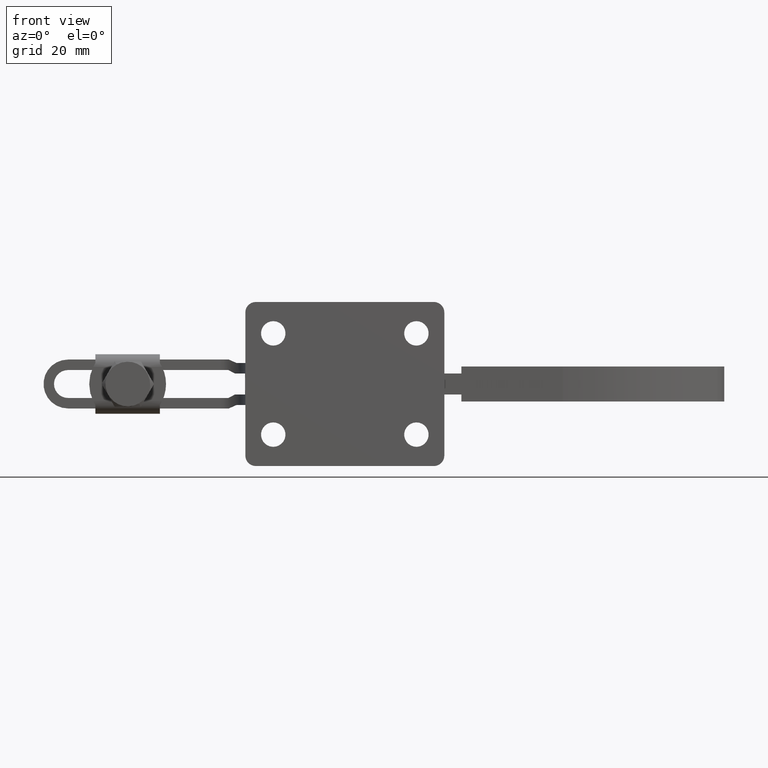
[diagram: clean part render]
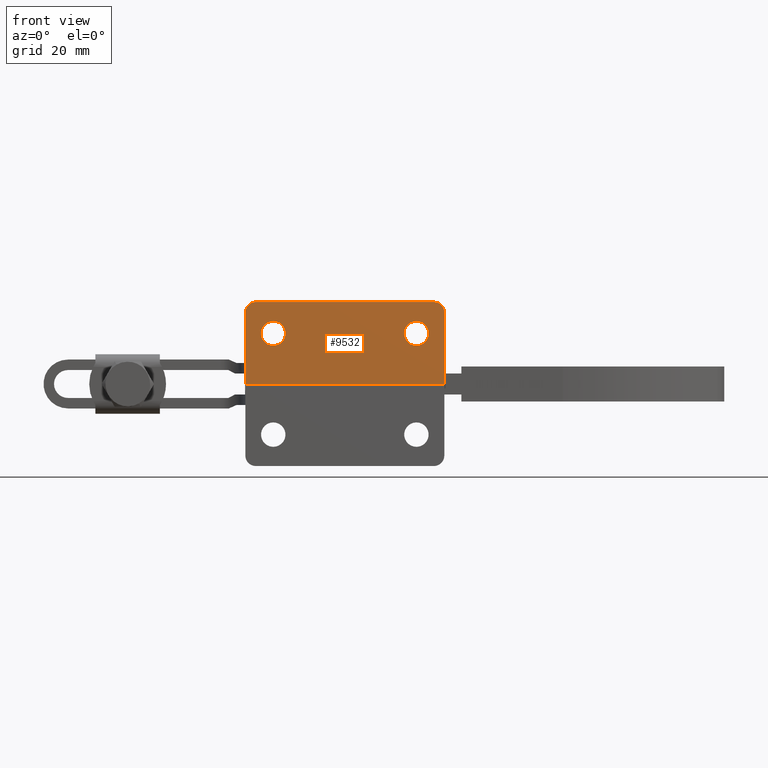
[diagram: same view with one face highlighted and labeled with its STEP entity id]
A machine part, front view. The second image highlights one B-rep face of the part: STEP entity #9532.
In plain terms, the highlighted planar face has unit normal (0, 1, 0).
Its self-contained STEP definition (entity closure, byte-faithful):
#43 = ORIENTED_EDGE ( 'NONE', *, *, #2394, .T. ) ;
#61 = CIRCLE ( 'NONE', #7552, 3.499999999999999600 ) ;
#221 = DIRECTION ( 'NONE',  ( 0.0000000000000000000, -1.000000000000000000, 0.0000000000000000000 ) ) ;
#383 = VERTEX_POINT ( 'NONE', #9295 ) ;
#393 = FACE_BOUND ( 'NONE', #9025, .T. ) ;
#451 = DIRECTION ( 'NONE',  ( 0.0000000000000000000, -1.000000000000000000, 0.0000000000000000000 ) ) ;
#472 = VERTEX_POINT ( 'NONE', #1089 ) ;
#546 = EDGE_CURVE ( 'NONE', #1109, #383, #7404, .T. ) ;
#640 = CARTESIAN_POINT ( 'NONE',  ( -53.99999999999999300, 0.0000000000000000000, 23.49999999999953500 ) ) ;
#754 = CARTESIAN_POINT ( 'NONE',  ( -53.99999999999996400, 0.0000000000000000000, 20.49999999999950600 ) ) ;
#787 = EDGE_CURVE ( 'NONE', #472, #5804, #6975, .T. ) ;
#910 = AXIS2_PLACEMENT_3D ( 'NONE', #1736, #6878, #8691 ) ;
#954 = ORIENTED_EDGE ( 'NONE', *, *, #787, .F. ) ;
#1089 = CARTESIAN_POINT ( 'NONE',  ( -49.00000000000002800, 0.0000000000000000000, 10.99999999999959000 ) ) ;
#1109 = VERTEX_POINT ( 'NONE', #2378 ) ;
#1136 = CARTESIAN_POINT ( 'NONE',  ( -56.99999999999994300, 0.0000000000000000000, 3.000000000000000000 ) ) ;
#1362 = AXIS2_PLACEMENT_3D ( 'NONE', #754, #5298, #2544 ) ;
#1447 = CIRCLE ( 'NONE', #1362, 2.999999999999964500 ) ;
#1685 = ORIENTED_EDGE ( 'NONE', *, *, #2163, .T. ) ;
#1736 = CARTESIAN_POINT ( 'NONE',  ( -3.000000000000037300, 0.0000000000000000000, 20.49999999999988600 ) ) ;
#1799 = VECTOR ( 'NONE', #6475, 1000.000000000000000 ) ;
#1867 = CARTESIAN_POINT ( 'NONE',  ( -49.00000000000002800, 0.0000000000000000000, 14.49999999999959000 ) ) ;
#1882 = DIRECTION ( 'NONE',  ( 0.0000000000000000000, 0.0000000000000000000, -1.000000000000000000 ) ) ;
#2095 = EDGE_CURVE ( 'NONE', #4907, #383, #8582, .T. ) ;
#2163 = EDGE_CURVE ( 'NONE', #4904, #4739, #3983, .T. ) ;
#2217 = EDGE_LOOP ( 'NONE', ( #6435, #4391, #4735, #1685, #43, #6569 ) ) ;
#2284 = CARTESIAN_POINT ( 'NONE',  ( -56.99999999999994300, -1.522237674642272100E-100, -1.333041399158481200E-049 ) ) ;
#2378 = CARTESIAN_POINT ( 'NONE',  ( -1.457167719820518000E-013, 0.0000000000000000000, 20.49999999999990800 ) ) ;
#2394 = EDGE_CURVE ( 'NONE', #4739, #6618, #1447, .T. ) ;
#2416 = VERTEX_POINT ( 'NONE', #7059 ) ;
#2526 = PLANE ( 'NONE',  #4174 ) ;
#2544 = DIRECTION ( 'NONE',  ( 0.0000000000000000000, 0.0000000000000000000, -1.000000000000000000 ) ) ;
#2563 = EDGE_LOOP ( 'NONE', ( #954, #5413 ) ) ;
#2626 = CIRCLE ( 'NONE', #3782, 3.499999999999999600 ) ;
#2941 = VECTOR ( 'NONE', #8666, 1000.000000000000000 ) ;
#2987 = CARTESIAN_POINT ( 'NONE',  ( -49.00000000000002800, 0.0000000000000000000, 17.99999999999958800 ) ) ;
#3100 = DIRECTION ( 'NONE',  ( 0.0000000000000000000, -0.0000000000000000000, 1.000000000000000000 ) ) ;
#3186 = VERTEX_POINT ( 'NONE', #8695 ) ;
#3353 = CIRCLE ( 'NONE', #910, 2.999999999999947200 ) ;
#3483 = CARTESIAN_POINT ( 'NONE',  ( -53.99999999999999300, 0.0000000000000000000, 23.49999999999953500 ) ) ;
#3509 = CARTESIAN_POINT ( 'NONE',  ( -56.99999999999992900, 0.0000000000000000000, 20.49999999999951300 ) ) ;
#3655 = ORIENTED_EDGE ( 'NONE', *, *, #6001, .F. ) ;
#3696 = AXIS2_PLACEMENT_3D ( 'NONE', #3836, #9038, #1882 ) ;
#3782 = AXIS2_PLACEMENT_3D ( 'NONE', #6320, #221, #4893 ) ;
#3836 = CARTESIAN_POINT ( 'NONE',  ( -8.000000000000111900, 0.0000000000000000000, 14.49999999999988100 ) ) ;
#3909 = VECTOR ( 'NONE', #7611, 1000.000000000000000 ) ;
#3983 = LINE ( 'NONE', #3483, #1799 ) ;
#4174 = AXIS2_PLACEMENT_3D ( 'NONE', #1136, #4944, #3100 ) ;
#4206 = CARTESIAN_POINT ( 'NONE',  ( -56.99999999999994300, -1.522237674642272100E-100, -1.333041399158481200E-049 ) ) ;
#4391 = ORIENTED_EDGE ( 'NONE', *, *, #546, .F. ) ;
#4437 = CARTESIAN_POINT ( 'NONE',  ( -49.00000000000002800, 0.0000000000000000000, 14.49999999999959000 ) ) ;
#4567 = EDGE_CURVE ( 'NONE', #1109, #4904, #3353, .T. ) ;
#4735 = ORIENTED_EDGE ( 'NONE', *, *, #4567, .T. ) ;
#4739 = VERTEX_POINT ( 'NONE', #640 ) ;
#4825 = DIRECTION ( 'NONE',  ( -0.0000000000000000000, -0.0000000000000000000, -1.000000000000000000 ) ) ;
#4893 = DIRECTION ( 'NONE',  ( 0.0000000000000000000, 0.0000000000000000000, -1.000000000000000000 ) ) ;
#4904 = VERTEX_POINT ( 'NONE', #7957 ) ;
#4907 = VERTEX_POINT ( 'NONE', #2284 ) ;
#4944 = DIRECTION ( 'NONE',  ( 0.0000000000000000000, 1.000000000000000000, 0.0000000000000000000 ) ) ;
#5209 = LINE ( 'NONE', #6889, #5429 ) ;
#5298 = DIRECTION ( 'NONE',  ( 0.0000000000000000000, -1.000000000000000000, 0.0000000000000000000 ) ) ;
#5413 = ORIENTED_EDGE ( 'NONE', *, *, #8475, .F. ) ;
#5429 = VECTOR ( 'NONE', #4825, 1000.000000000000000 ) ;
#5536 = DIRECTION ( 'NONE',  ( 0.0000000000000000000, 0.0000000000000000000, -1.000000000000000000 ) ) ;
#5669 = DIRECTION ( 'NONE',  ( 0.0000000000000000000, 0.0000000000000000000, -1.000000000000000000 ) ) ;
#5804 = VERTEX_POINT ( 'NONE', #2987 ) ;
#6001 = EDGE_CURVE ( 'NONE', #2416, #3186, #2626, .T. ) ;
#6029 = CIRCLE ( 'NONE', #3696, 3.499999999999999600 ) ;
#6257 = FACE_BOUND ( 'NONE', #2563, .T. ) ;
#6282 = CARTESIAN_POINT ( 'NONE',  ( 0.0000000000000000000, 0.0000000000000000000, 3.000000000000000000 ) ) ;
#6320 = CARTESIAN_POINT ( 'NONE',  ( -8.000000000000111900, 0.0000000000000000000, 14.49999999999988100 ) ) ;
#6435 = ORIENTED_EDGE ( 'NONE', *, *, #2095, .T. ) ;
#6475 = DIRECTION ( 'NONE',  ( -1.000000000000000000, -0.0000000000000000000, -6.938893903907237800E-015 ) ) ;
#6550 = DIRECTION ( 'NONE',  ( 0.0000000000000000000, -1.000000000000000000, 0.0000000000000000000 ) ) ;
#6569 = ORIENTED_EDGE ( 'NONE', *, *, #8003, .T. ) ;
#6583 = ORIENTED_EDGE ( 'NONE', *, *, #9541, .F. ) ;
#6618 = VERTEX_POINT ( 'NONE', #3509 ) ;
#6878 = DIRECTION ( 'NONE',  ( 0.0000000000000000000, -1.000000000000000000, 0.0000000000000000000 ) ) ;
#6889 = CARTESIAN_POINT ( 'NONE',  ( -56.99999999999994300, 0.0000000000000000000, 3.000000000000000000 ) ) ;
#6975 = CIRCLE ( 'NONE', #7411, 3.499999999999999600 ) ;
#7059 = CARTESIAN_POINT ( 'NONE',  ( -8.000000000000111900, 0.0000000000000000000, 17.99999999999987900 ) ) ;
#7404 = LINE ( 'NONE', #6282, #3909 ) ;
#7411 = AXIS2_PLACEMENT_3D ( 'NONE', #1867, #6550, #5669 ) ;
#7552 = AXIS2_PLACEMENT_3D ( 'NONE', #4437, #451, #5536 ) ;
#7611 = DIRECTION ( 'NONE',  ( -0.0000000000000000000, -0.0000000000000000000, -1.000000000000000000 ) ) ;
#7957 = CARTESIAN_POINT ( 'NONE',  ( -3.000000000000056800, 0.0000000000000000000, 23.49999999999983300 ) ) ;
#8003 = EDGE_CURVE ( 'NONE', #6618, #4907, #5209, .T. ) ;
#8208 = FACE_OUTER_BOUND ( 'NONE', #2217, .T. ) ;
#8475 = EDGE_CURVE ( 'NONE', #5804, #472, #61, .T. ) ;
#8582 = LINE ( 'NONE', #4206, #2941 ) ;
#8666 = DIRECTION ( 'NONE',  ( 1.000000000000000000, 2.670592411653112100E-102, 2.338669121330671200E-051 ) ) ;
#8691 = DIRECTION ( 'NONE',  ( 0.0000000000000000000, 0.0000000000000000000, -1.000000000000000000 ) ) ;
#8695 = CARTESIAN_POINT ( 'NONE',  ( -8.000000000000111900, 0.0000000000000000000, 10.99999999999988100 ) ) ;
#9025 = EDGE_LOOP ( 'NONE', ( #6583, #3655 ) ) ;
#9038 = DIRECTION ( 'NONE',  ( 0.0000000000000000000, -1.000000000000000000, 0.0000000000000000000 ) ) ;
#9295 = CARTESIAN_POINT ( 'NONE',  ( 0.0000000000000000000, 0.0000000000000000000, 0.0000000000000000000 ) ) ;
#9532 = ADVANCED_FACE ( 'NONE', ( #393, #6257, #8208 ), #2526, .F. ) ;
#9541 = EDGE_CURVE ( 'NONE', #3186, #2416, #6029, .T. ) ;